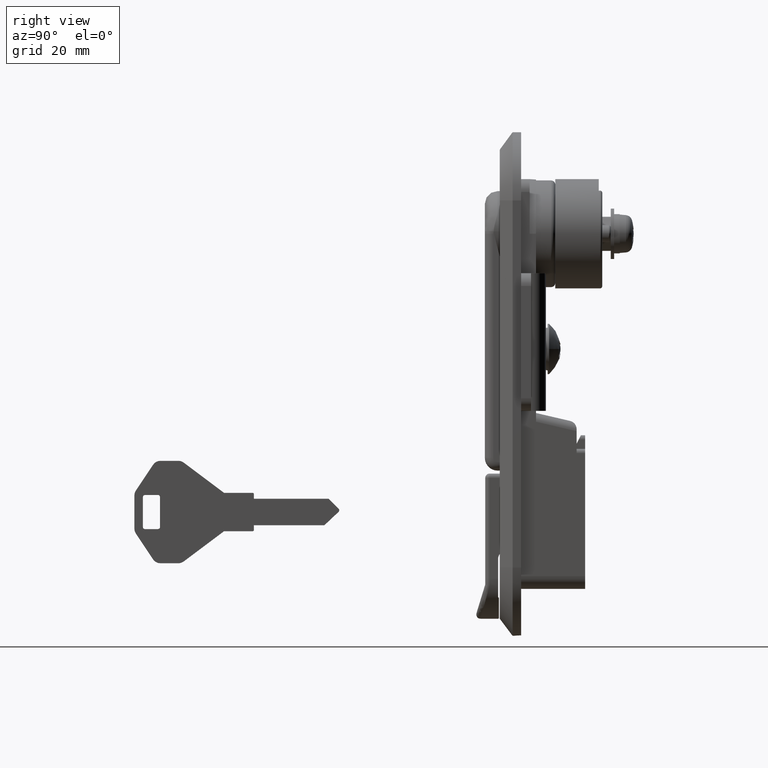
[diagram: clean part render]
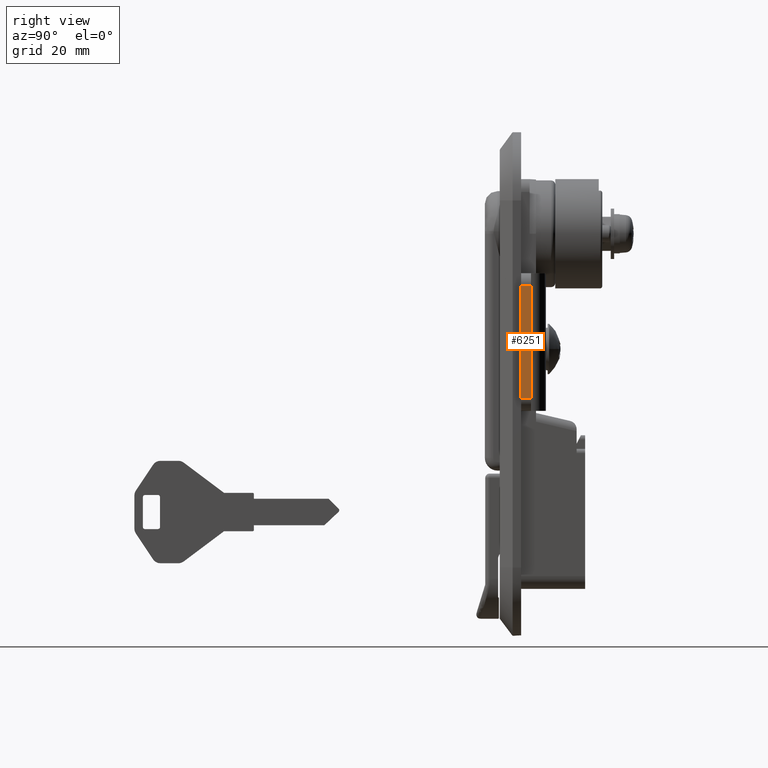
[diagram: same view with one face highlighted and labeled with its STEP entity id]
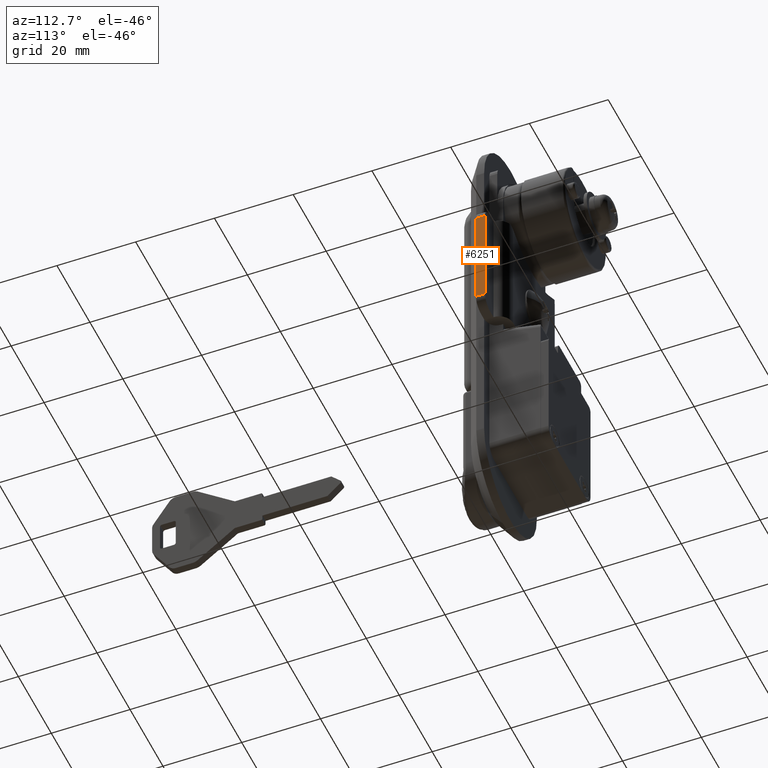
[diagram: same view with one face highlighted and labeled with its STEP entity id]
A machine part, right view. The second image highlights one B-rep face of the part: STEP entity #6251.
A second angle (auxiliary view) of the same face is appended — the face is thin or edge-on in the first view.
In plain terms, the highlighted planar face has unit normal (-1, 0, 0).
Its self-contained STEP definition (entity closure, byte-faithful):
#6251 = ADVANCED_FACE ( 'NONE', ( #13880 ), #13879, .F. ) ;
#6252 = EDGE_LOOP ( 'NONE', ( #6253, #6257, #6314, #6315 ) ) ;
#6253 = ORIENTED_EDGE ( 'NONE', *, *, #6254, .F. ) ;
#6254 = EDGE_CURVE ( 'NONE', #6255, #6256, #13874, .T. ) ;
#6255 = VERTEX_POINT ( 'NONE', #13870 ) ;
#6256 = VERTEX_POINT ( 'NONE', #13869 ) ;
#6257 = ORIENTED_EDGE ( 'NONE', *, *, #6313, .T. ) ;
#6267 = EDGE_CURVE ( 'NONE', #6268, #6269, #13918, .T. ) ;
#6268 = VERTEX_POINT ( 'NONE', #13914 ) ;
#6269 = VERTEX_POINT ( 'NONE', #13913 ) ;
#6313 = EDGE_CURVE ( 'NONE', #6255, #6268, #13957, .T. ) ;
#6314 = ORIENTED_EDGE ( 'NONE', *, *, #6267, .T. ) ;
#6315 = ORIENTED_EDGE ( 'NONE', *, *, #6316, .T. ) ;
#6316 = EDGE_CURVE ( 'NONE', #6269, #6256, #13953, .T. ) ;
#13869 = CARTESIAN_POINT ( 'NONE',  ( 4.999999999999920100, -21.00000000000000000, -12.25000000000000000 ) ) ;
#13870 = CARTESIAN_POINT ( 'NONE',  ( 4.999999999999920100, -21.00000000000000000, -38.50000000000000000 ) ) ;
#13871 = DIRECTION ( 'NONE',  ( 0.0000000000000000000, 0.0000000000000000000, 1.000000000000000000 ) ) ;
#13872 = VECTOR ( 'NONE', #13871, 1000.000000000000000 ) ;
#13873 = CARTESIAN_POINT ( 'NONE',  ( 4.999999999999920100, -21.00000000000000000, -1009.250000000000000 ) ) ;
#13874 = LINE ( 'NONE', #13873, #13872 ) ;
#13875 = DIRECTION ( 'NONE',  ( 0.0000000000000000000, 0.0000000000000000000, 1.000000000000000000 ) ) ;
#13876 = DIRECTION ( 'NONE',  ( 0.0000000000000000000, 1.000000000000000000, 0.0000000000000000000 ) ) ;
#13877 = CARTESIAN_POINT ( 'NONE',  ( 7.299999999999809800, -21.00000000000000000, -1009.250000000000000 ) ) ;
#13878 = AXIS2_PLACEMENT_3D ( 'NONE', #13877, #13876, #13875 ) ;
#13879 = PLANE ( 'NONE',  #13878 ) ;
#13880 = FACE_OUTER_BOUND ( 'NONE', #6252, .T. ) ;
#13913 = CARTESIAN_POINT ( 'NONE',  ( 7.299999999999809800, -21.00000000000000000, -12.25000000000000000 ) ) ;
#13914 = CARTESIAN_POINT ( 'NONE',  ( 7.299999999999809800, -21.00000000000000000, -38.50000000000000000 ) ) ;
#13915 = DIRECTION ( 'NONE',  ( 0.0000000000000000000, 0.0000000000000000000, 1.000000000000000000 ) ) ;
#13916 = VECTOR ( 'NONE', #13915, 1000.000000000000000 ) ;
#13917 = CARTESIAN_POINT ( 'NONE',  ( 7.299999999999809800, -21.00000000000000000, -1009.250000000000000 ) ) ;
#13918 = LINE ( 'NONE', #13917, #13916 ) ;
#13953 = LINE ( 'NONE', #14017, #14016 ) ;
#13954 = DIRECTION ( 'NONE',  ( 1.000000000000000000, 0.0000000000000000000, 0.0000000000000000000 ) ) ;
#13955 = VECTOR ( 'NONE', #13954, 1000.000000000000000 ) ;
#13956 = CARTESIAN_POINT ( 'NONE',  ( 7.299999999999809800, -21.00000000000000000, -38.50000000000000000 ) ) ;
#13957 = LINE ( 'NONE', #13956, #13955 ) ;
#14015 = DIRECTION ( 'NONE',  ( -1.000000000000000000, 0.0000000000000000000, 0.0000000000000000000 ) ) ;
#14016 = VECTOR ( 'NONE', #14015, 1000.000000000000000 ) ;
#14017 = CARTESIAN_POINT ( 'NONE',  ( 4.999999999999920100, -21.00000000000000000, -12.25000000000000000 ) ) ;